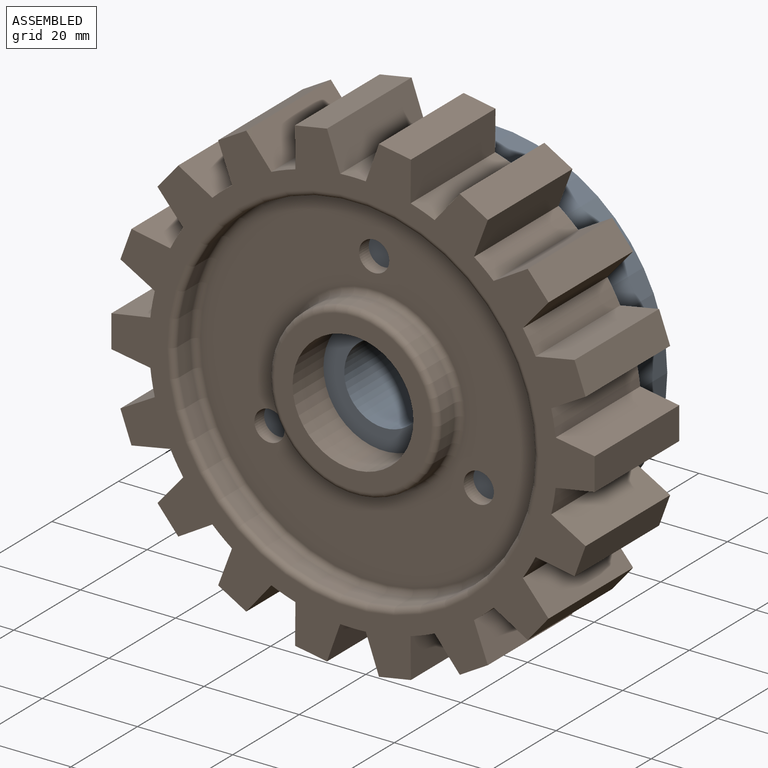
[diagram: assembled view]
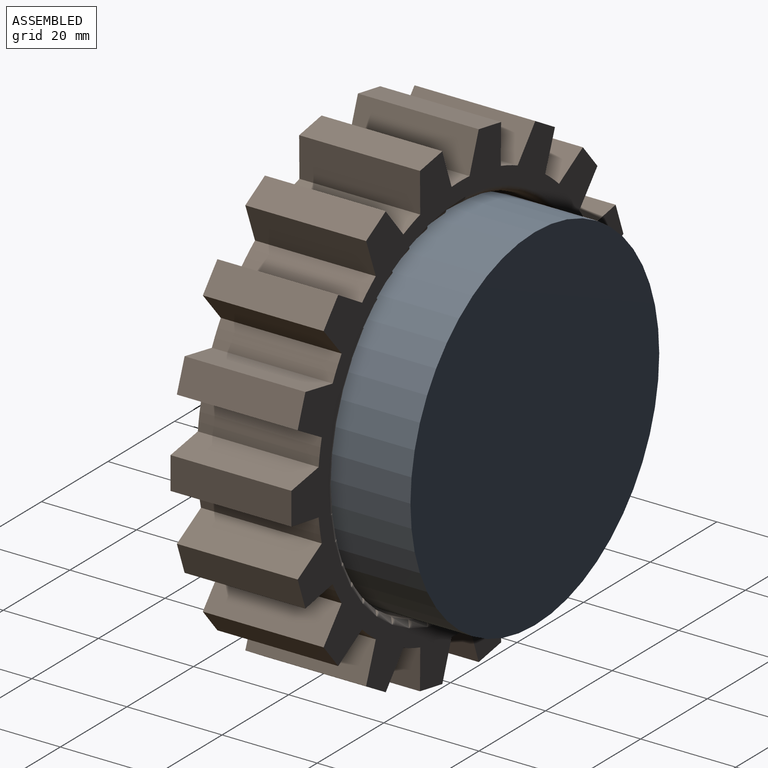
[diagram: assembled view, second angle]
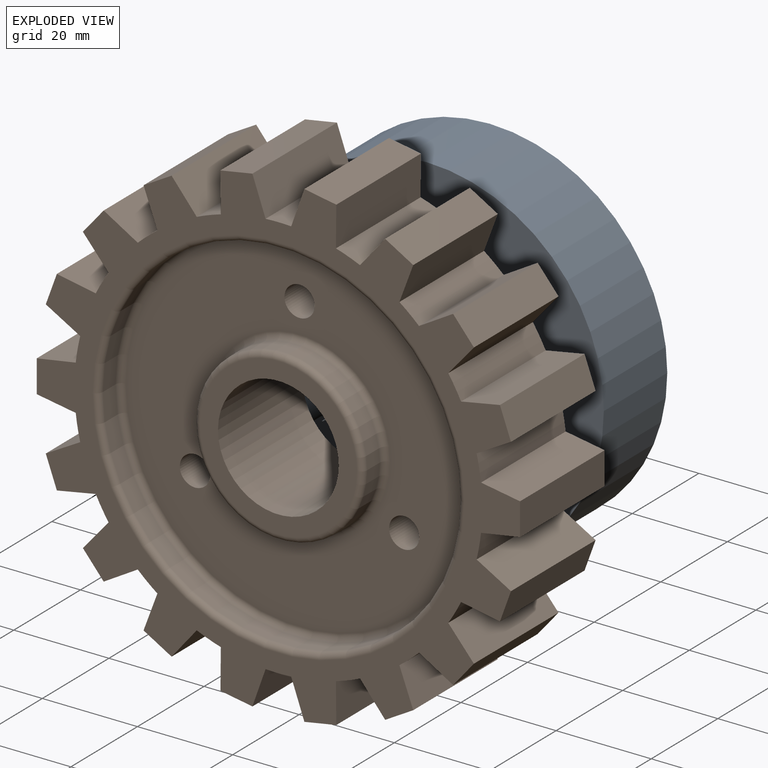
[diagram: exploded view]
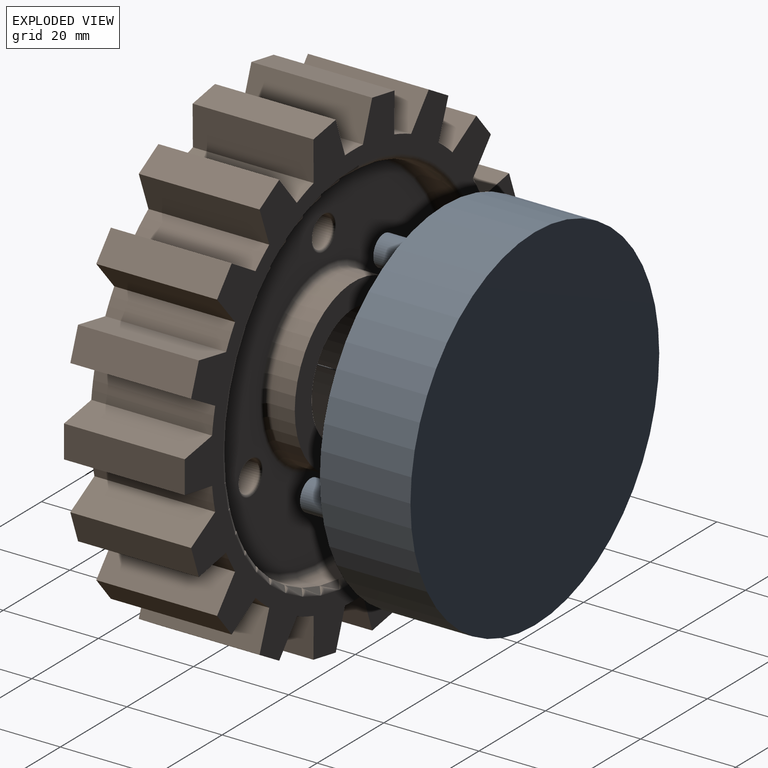
[diagram: exploded view, second angle]
ASSEMBLY  parts=2 mates=2
PART A: 18 faces, bbox 74.7x31.8x74.7 mm
  f0: cylinder r=37.35mm len=74.7mm, axis (0,1,0), area 4470.7mm2, adj f1,f2
  f1: plane 74.7x74.7mm, normal (0,-1,0), area 3200.6mm2, adj f0,f9,f13,f14,f15
  f2: plane 74.7x74.7mm, normal (0,1,0), area 4382.8mm2, adj f0
  f3: cylinder r=3.17mm len=11.43mm, axis (0,1,0), area 228mm2, adj f4,f15
  f4: plane 6.35x6.35mm, normal (0,-1,0), area 31.7mm2, adj f3
  f5: cylinder r=3.17mm len=11.43mm, axis (0,1,0), area 228mm2, adj f6,f14
  f6: plane 6.35x6.35mm, normal (0,-1,0), area 31.7mm2, adj f5
  f7: cylinder r=3.17mm len=11.43mm, axis (0,1,0), area 228mm2, adj f8,f13
  f8: plane 6.35x6.35mm, normal (0,-1,0), area 31.7mm2, adj f7
  f9: cylinder r=17.81mm len=35.61mm, axis (0,-1,0), area 710.4mm2, adj f1,f10
  f10: plane 35.61x35.61mm, normal (0,-1,0), area 489.3mm2, adj f9,f12
  f11: plane 25.4x25.4mm, normal (0,-1,0), area 288.5mm2, adj f12,f16
  f12: cylinder r=12.7mm len=25.4mm, axis (0,1,0), area 1520.1mm2, adj f10,f11
  f13: torus R=4.45mm, axis (0,-1,0), area 45.6mm2, adj f1,f7
  f14: torus R=4.45mm, axis (0,-1,0), area 45.6mm2, adj f1,f5
  f15: torus R=4.45mm, axis (0,-1,0), area 45.6mm2, adj f1,f3
  f16: cylinder r=8.33mm len=19.05mm, axis (0,-1,0), area 997.5mm2, adj f11,f17
  f17: cone r=0mm half-angle=59deg, axis (0,-1,0), area 254.5mm2, adj f16
PART B: 96 faces, bbox 101.6x101.2x25.4 mm
  f0: plane 35.56x35.56mm, normal (0,0,-1), area 486.4mm2, adj f79,f87
  f1: plane 33.02x33.02mm, normal (0,0,1), area 349.6mm2, adj f79,f86
  f2: cylinder r=3.17mm len=12.19mm, axis (0,0,1), area 243.2mm2, adj f82,f93
  f3: cylinder r=3.17mm len=12.19mm, axis (0,0,1), area 243.2mm2, adj f82,f94
  f4: cylinder r=3.17mm len=12.19mm, axis (0,0,1), area 243.2mm2, adj f82,f95
  f5: plane 25.4x8.18mm, normal (0.18,-0.98,0), area 211.2mm2, adj f6,f76,f77,f78
  f6: cylinder r=42.87mm len=25.4mm, axis (0,0,-1), area 136.9mm2, adj f5,f7,f77,f78
  f7: plane 25.4x6.32mm, normal (-0.76,0.65,0), area 211.2mm2, adj f6,f8,f77,f78
  f8: plane 25.4x5.22mm, normal (-0.77,-0.64,0), area 173mm2, adj f7,f9,f77,f78
  f9: plane 25.4x7.16mm, normal (0.51,-0.86,0), area 211.2mm2, adj f8,f10,f77,f78
  f10: cylinder r=42.87mm len=25.4mm, axis (0,0,-1), area 136.9mm2, adj f9,f11,f77,f78
  f11: plane 25.4x7.79mm, normal (-0.94,0.35,0), area 211.2mm2, adj f10,f12,f77,f78
  f12: plane 25.4x5.9mm, normal (-0.5,-0.87,0), area 173mm2, adj f11,f13,f77,f78
  f13: plane 25.4x6.42mm, normal (0.77,-0.64,0), area 211.2mm2, adj f12,f14,f77,f78
  f14: cylinder r=42.87mm len=25.4mm, axis (0,0,-1), area 136.9mm2, adj f13,f15,f77,f78
  f15: plane 25.4x8.31mm, normal (-1,0.01,0), area 211.2mm2, adj f14,f16,f77,f78
  f16: plane 25.4x6.71mm, normal (-0.17,-0.98,0), area 173mm2, adj f15,f17,f77,f78
  f17: plane 25.4x7.84mm, normal (0.94,-0.33,0), area 211.2mm2, adj f16,f18,f77,f78
  f18: cylinder r=42.87mm len=25.4mm, axis (0,0,-1), area 136.9mm2, adj f17,f19,f77,f78
  f19: plane 25.4x7.84mm, normal (-0.94,-0.33,0), area 211.2mm2, adj f18,f20,f77,f78
  f20: plane 25.4x6.71mm, normal (0.17,-0.98,0), area 173mm2, adj f19,f21,f77,f78
  f21: plane 25.4x8.31mm, normal (1,0.01,0), area 211.2mm2, adj f20,f22,f77,f78
  f22: cylinder r=42.87mm len=25.4mm, axis (0,0,-1), area 136.9mm2, adj f21,f23,f77,f78
  f23: plane 25.4x6.42mm, normal (-0.77,-0.64,0), area 211.2mm2, adj f22,f24,f77,f78
  f24: plane 25.4x5.9mm, normal (0.5,-0.87,0), area 173mm2, adj f23,f25,f77,f78
  f25: plane 25.4x7.79mm, normal (0.94,0.35,0), area 211.2mm2, adj f24,f26,f77,f78
  f26: cylinder r=42.87mm len=25.4mm, axis (0,0,-1), area 136.9mm2, adj f25,f27,f77,f78
  f27: plane 25.4x7.16mm, normal (-0.51,-0.86,0), area 211.2mm2, adj f26,f28,f77,f78
  f28: plane 25.4x5.22mm, normal (0.77,-0.64,0), area 173mm2, adj f27,f29,f77,f78
  f29: plane 25.4x6.32mm, normal (0.76,0.65,0), area 211.2mm2, adj f28,f30,f77,f78
  f30: cylinder r=42.87mm len=25.4mm, axis (0,0,-1), area 136.9mm2, adj f29,f31,f77,f78
  f31: plane 25.4x8.18mm, normal (-0.18,-0.98,0), area 211.2mm2, adj f30,f32,f77,f78
  f32: plane 25.4x6.4mm, normal (0.94,-0.34,0), area 173mm2, adj f31,f33,f77,f78
  f33: plane 25.4x7.24mm, normal (0.49,0.87,0), area 211.2mm2, adj f32,f34,f77,f78
  f34: cylinder r=42.87mm len=25.4mm, axis (0,0,-1), area 136.9mm2, adj f33,f35,f77,f78
  f35: plane 25.4x8.2mm, normal (0.17,-0.99,0), area 211.2mm2, adj f34,f36,f77,f78
  f36: plane 25.4x6.81mm, normal (1,0,0), area 173mm2, adj f35,f37,f77,f78
  f37: plane 25.4x8.2mm, normal (0.17,0.99,0), area 211.2mm2, adj f36,f38,f77,f78
  f38: cylinder r=42.87mm len=25.4mm, axis (0,0,-1), area 136.9mm2, adj f37,f39,f77,f78
  f39: plane 25.4x7.24mm, normal (0.49,-0.87,0), area 211.2mm2, adj f38,f40,f77,f78
  f40: plane 25.4x6.4mm, normal (0.94,0.34,0), area 173mm2, adj f39,f41,f77,f78
  f41: plane 25.4x8.18mm, normal (-0.18,0.98,0), area 211.2mm2, adj f40,f42,f77,f78
  f42: cylinder r=42.87mm len=25.4mm, axis (0,0,-1), area 136.9mm2, adj f41,f43,f77,f78
  f43: plane 25.4x6.32mm, normal (0.76,-0.65,0), area 211.2mm2, adj f42,f44,f77,f78
  f44: plane 25.4x5.22mm, normal (0.77,0.64,0), area 173mm2, adj f43,f45,f77,f78
  f45: plane 25.4x7.16mm, normal (-0.51,0.86,0), area 211.2mm2, adj f44,f46,f77,f78
  f46: cylinder r=42.87mm len=25.4mm, axis (0,0,-1), area 136.9mm2, adj f45,f47,f77,f78
  f47: plane 25.4x7.79mm, normal (0.94,-0.35,0), area 211.2mm2, adj f46,f48,f77,f78
  f48: plane 25.4x5.9mm, normal (0.5,0.87,0), area 173mm2, adj f47,f49,f77,f78
  f49: plane 25.4x6.42mm, normal (-0.77,0.64,0), area 211.2mm2, adj f48,f50,f77,f78
  f50: cylinder r=42.87mm len=25.4mm, axis (0,0,-1), area 136.9mm2, adj f49,f51,f77,f78
  f51: plane 25.4x8.31mm, normal (1,-0.01,0), area 211.2mm2, adj f50,f52,f77,f78
  f52: plane 25.4x6.71mm, normal (0.17,0.98,0), area 173mm2, adj f51,f53,f77,f78
  f53: plane 25.4x7.84mm, normal (-0.94,0.33,0), area 211.2mm2, adj f52,f54,f77,f78
  f54: cylinder r=42.87mm len=25.4mm, axis (0,0,-1), area 136.9mm2, adj f53,f55,f77,f78
  f55: plane 25.4x7.84mm, normal (0.94,0.33,0), area 211.2mm2, adj f54,f56,f77,f78
  f56: plane 25.4x6.71mm, normal (-0.17,0.98,0), area 173mm2, adj f55,f57,f77,f78
  f57: plane 25.4x8.31mm, normal (-1,-0.01,0), area 211.2mm2, adj f56,f58,f77,f78
  f58: cylinder r=42.87mm len=25.4mm, axis (0,0,-1), area 136.9mm2, adj f57,f59,f77,f78
  f59: plane 25.4x6.42mm, normal (0.77,0.64,0), area 211.2mm2, adj f58,f60,f77,f78
  f60: plane 25.4x5.9mm, normal (-0.5,0.87,0), area 173mm2, adj f59,f61,f77,f78
  f61: plane 25.4x7.79mm, normal (-0.94,-0.35,0), area 211.2mm2, adj f60,f62,f77,f78
  f62: cylinder r=42.87mm len=25.4mm, axis (0,0,-1), area 136.9mm2, adj f61,f63,f77,f78
  f63: plane 25.4x7.16mm, normal (0.51,0.86,0), area 211.2mm2, adj f62,f64,f77,f78
  f64: plane 25.4x5.22mm, normal (-0.77,0.64,0), area 173mm2, adj f63,f65,f77,f78
  f65: plane 25.4x6.32mm, normal (-0.76,-0.65,0), area 211.2mm2, adj f64,f66,f77,f78
  f66: cylinder r=42.87mm len=25.4mm, axis (0,0,-1), area 136.9mm2, adj f65,f67,f77,f78
  f67: plane 25.4x8.18mm, normal (0.18,0.98,0), area 211.2mm2, adj f66,f68,f77,f78
  f68: plane 25.4x6.4mm, normal (-0.94,0.34,0), area 173mm2, adj f67,f69,f77,f78
  f69: plane 25.4x7.24mm, normal (-0.49,-0.87,0), area 211.2mm2, adj f68,f70,f77,f78
  f70: cylinder r=42.87mm len=25.4mm, axis (0,0,-1), area 136.9mm2, adj f69,f71,f77,f78
  f71: plane 25.4x8.2mm, normal (-0.17,0.99,0), area 211.2mm2, adj f70,f72,f77,f78
  f72: plane 25.4x6.81mm, normal (-1,0,0), area 173mm2, adj f71,f73,f77,f78
  f73: plane 25.4x8.2mm, normal (-0.17,-0.99,0), area 211.2mm2, adj f72,f74,f77,f78
  f74: cylinder r=42.87mm len=25.4mm, axis (0,0,-1), area 136.9mm2, adj f73,f75,f77,f78
  f75: plane 25.4x7.24mm, normal (-0.49,0.87,0), area 211.2mm2, adj f74,f76,f77,f78
  f76: plane 25.4x6.4mm, normal (-0.94,-0.34,0), area 173mm2, adj f5,f75,f77,f78
  f77: plane 101.6x101.24mm, normal (0,0,1), area 2157.7mm2, adj f5,f6,f7,f8,f9,f10,f11,f12
  f78: plane 101.6x101.24mm, normal (0,0,-1), area 2080.5mm2, adj f5,f6,f7,f8,f9,f10,f11,f12
  f79: cylinder r=12.7mm len=25.4mm, axis (0,0,1), area 2026.8mm2, adj f0,f1
  f80: cylinder r=17.78mm len=35.56mm, axis (0,0,1), area 425.6mm2, adj f85,f86
  f81: cylinder r=37.79mm len=75.57mm, axis (0,0,1), area 904.6mm2, adj f83,f84
  f82: plane 73.03x73.03mm, normal (0,0,1), area 2954.1mm2, adj f2,f3,f4,f84,f85
  f83: torus R=39.06mm, axis (0,0,1), area 479.4mm2, adj f77,f81
  f84: torus R=36.52mm, axis (0,0,1), area 467.8mm2, adj f81,f82
  f85: torus R=19.05mm, axis (0,0,1), area 228.6mm2, adj f80,f82
  f86: torus R=16.51mm, axis (0,0,1), area 217.1mm2, adj f1,f80
  f87: cylinder r=17.78mm len=35.56mm, axis (0,0,1), area 567.5mm2, adj f0,f90
  f88: plane 73.66x73.66mm, normal (0,0,-1), area 2993.5mm2, adj f90,f91,f93,f94,f95
  f89: cylinder r=38.1mm len=76.2mm, axis (0,0,1), area 912.1mm2, adj f91,f92
  f90: torus R=19.05mm, axis (0,0,1), area 228.6mm2, adj f87,f88
  f91: torus R=36.83mm, axis (0,0,1), area 471.8mm2, adj f88,f89
  f92: torus R=39.37mm, axis (0,0,1), area 483.3mm2, adj f78,f89
  f93: torus R=3.68mm, axis (0,0,1), area 16.8mm2, adj f2,f88
  f94: torus R=3.68mm, axis (0,0,1), area 16.8mm2, adj f3,f88
  f95: torus R=3.68mm, axis (0,0,1), area 16.8mm2, adj f4,f88
PLACE A t=(-0.27,48.04,0.17)mm
PLACE B rot(axis=(1,0,0),90deg) t=(-0.27,41.94,0.17)mm
MATE cylindrical B.f2 <-> A.f3  axis (0,-1,0) through (-0.27,35.09,25.57)mm
MATE parallel B.f6 <-> A.f0  axis (0,1,0) through (-0.27,35.59,0.17)mm
